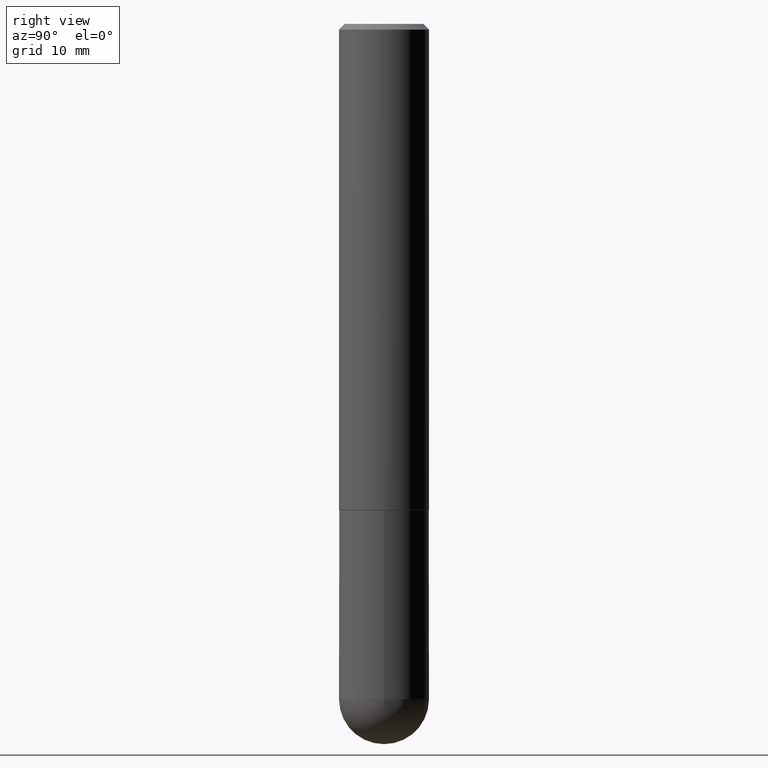
[diagram: clean part render]
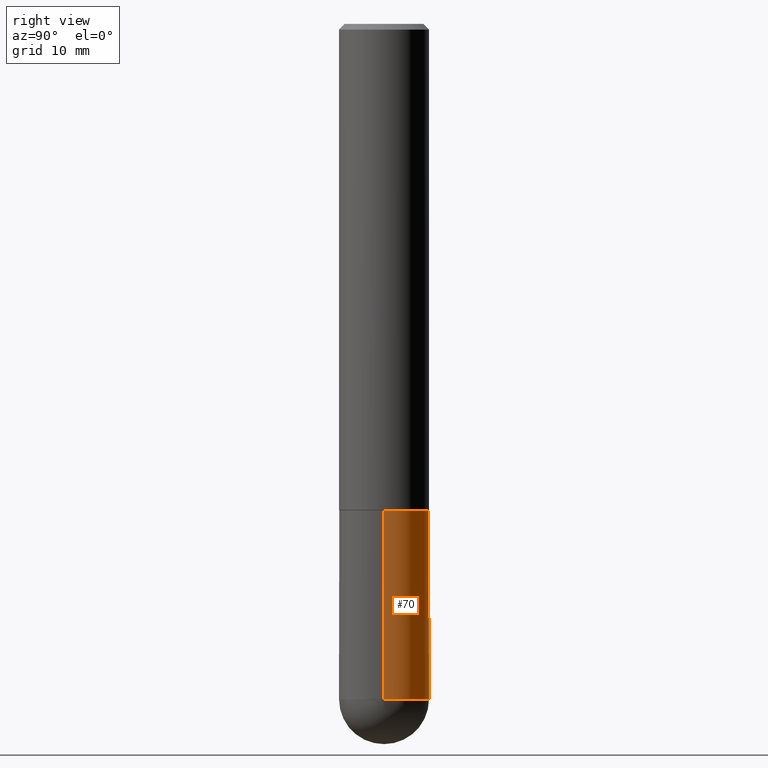
[diagram: same view with one face highlighted and labeled with its STEP entity id]
A machine part, right view. The second image highlights one B-rep face of the part: STEP entity #70.
In plain terms, the highlighted cylindrical surface (partial cylindrical patch) has radius 3.9688 mm, axis along (-0, 0, 1).
Its self-contained STEP definition (entity closure, byte-faithful):
#1 = DIRECTION ( 'NONE',  ( -2.445468806185136597E-29, 3.491481338843145583E-15, 1.000000000000000000 ) ) ;
#5 = DIRECTION ( 'NONE',  ( -2.445468806185136597E-29, 3.491481338843145583E-15, 1.000000000000000000 ) ) ;
#10 = VERTEX_POINT ( 'NONE', #169 ) ;
#15 = DIRECTION ( 'NONE',  ( -2.445468806185136877E-29, 3.491481338843145188E-15, 1.000000000000000000 ) ) ;
#18 = ORIENTED_EDGE ( 'NONE', *, *, #331, .T. ) ;
#30 = EDGE_CURVE ( 'NONE', #400, #10, #132, .T. ) ;
#43 = ORIENTED_EDGE ( 'NONE', *, *, #270, .F. ) ;
#60 = CARTESIAN_POINT ( 'NONE',  ( 0.1562500000000000000, -6.984708418355709513E-15, -1.688000000000000167 ) ) ;
#70 = ADVANCED_FACE ( 'NONE', ( #252 ), #254, .T. ) ;
#74 = VERTEX_POINT ( 'NONE', #146 ) ;
#75 = CARTESIAN_POINT ( 'NONE',  ( 4.127951344840510809E-29, -5.893620499967230340E-15, -1.688000000000000167 ) ) ;
#100 = CIRCLE ( 'NONE', #225, 0.1562500000000000000 ) ;
#102 = DIRECTION ( 'NONE',  ( -2.445468806185136877E-29, 3.491481338843145188E-15, 1.000000000000000000 ) ) ;
#110 = VERTEX_POINT ( 'NONE', #215 ) ;
#128 = EDGE_CURVE ( 'NONE', #110, #400, #165, .T. ) ;
#132 = LINE ( 'NONE', #321, #172 ) ;
#146 = CARTESIAN_POINT ( 'NONE',  ( 0.1562500000000000000, -8.129477862328905246E-15, -2.343750000000000000 ) ) ;
#152 = CARTESIAN_POINT ( 'NONE',  ( 5.731567514496413899E-29, -8.183159387913622595E-15, -2.343750000000000000 ) ) ;
#157 = LINE ( 'NONE', #164, #248 ) ;
#159 = DIRECTION ( 'NONE',  ( 1.000000000000000000, -6.982962677686269077E-15, 0.000000000000000000 ) ) ;
#164 = CARTESIAN_POINT ( 'NONE',  ( 0.1562500000000000000, -1.091087918388479174E-15, 7.619026212181150377E-30 ) ) ;
#165 = CIRCLE ( 'NONE', #401, 0.1562500000000000000 ) ;
#169 = CARTESIAN_POINT ( 'NONE',  ( -0.1562500000000000000, -5.928166919315269532E-15, -1.688000000000000167 ) ) ;
#172 = VECTOR ( 'NONE', #15, 39.37007874015748143 ) ;
#185 = DIRECTION ( 'NONE',  ( -2.445468806185136597E-29, 3.491481338843145583E-15, 1.000000000000000000 ) ) ;
#191 = DIRECTION ( 'NONE',  ( 1.000000000000000000, -6.982962677686262766E-15, 0.000000000000000000 ) ) ;
#196 = CARTESIAN_POINT ( 'NONE',  ( -0.1562500000000000000, -5.928166919315270321E-15, -2.343750000000000000 ) ) ;
#207 = VERTEX_POINT ( 'NONE', #60 ) ;
#211 = DIRECTION ( 'NONE',  ( 1.000000000000000000, -6.982962677686266711E-15, 4.876176775795936353E-29 ) ) ;
#215 = CARTESIAN_POINT ( 'NONE',  ( 1.091087918388535577E-15, 0.1562499999999916733, -2.343750000000000444 ) ) ;
#225 = AXIS2_PLACEMENT_3D ( 'NONE', #75, #5, #159 ) ;
#248 = VECTOR ( 'NONE', #102, 39.37007874015748143 ) ;
#252 = FACE_OUTER_BOUND ( 'NONE', #356, .T. ) ;
#254 = CYLINDRICAL_SURFACE ( 'NONE', #310, 0.1562500000000000000 ) ;
#264 = CIRCLE ( 'NONE', #289, 0.1562500000000000000 ) ;
#270 = EDGE_CURVE ( 'NONE', #74, #207, #157, .T. ) ;
#289 = AXIS2_PLACEMENT_3D ( 'NONE', #322, #325, #191 ) ;
#298 = ORIENTED_EDGE ( 'NONE', *, *, #404, .F. ) ;
#300 = CARTESIAN_POINT ( 'NONE',  ( 0.000000000000000000, 0.000000000000000000, 0.000000000000000000 ) ) ;
#310 = AXIS2_PLACEMENT_3D ( 'NONE', #300, #185, #211 ) ;
#321 = CARTESIAN_POINT ( 'NONE',  ( -0.1562500000000000000, 1.110223024625156540E-15, -7.685836078523291160E-30 ) ) ;
#322 = CARTESIAN_POINT ( 'NONE',  ( 5.731567514496413899E-29, -8.183159387913622595E-15, -2.343750000000000000 ) ) ;
#325 = DIRECTION ( 'NONE',  ( -2.445468806185136597E-29, 3.491481338843145583E-15, 1.000000000000000000 ) ) ;
#331 = EDGE_CURVE ( 'NONE', #74, #110, #264, .T. ) ;
#356 = EDGE_LOOP ( 'NONE', ( #399, #398, #298, #43, #18 ) ) ;
#372 = DIRECTION ( 'NONE',  ( 1.000000000000000000, -6.982962677686262766E-15, 0.000000000000000000 ) ) ;
#398 = ORIENTED_EDGE ( 'NONE', *, *, #30, .T. ) ;
#399 = ORIENTED_EDGE ( 'NONE', *, *, #128, .T. ) ;
#400 = VERTEX_POINT ( 'NONE', #196 ) ;
#401 = AXIS2_PLACEMENT_3D ( 'NONE', #152, #1, #372 ) ;
#404 = EDGE_CURVE ( 'NONE', #207, #10, #100, .T. ) ;